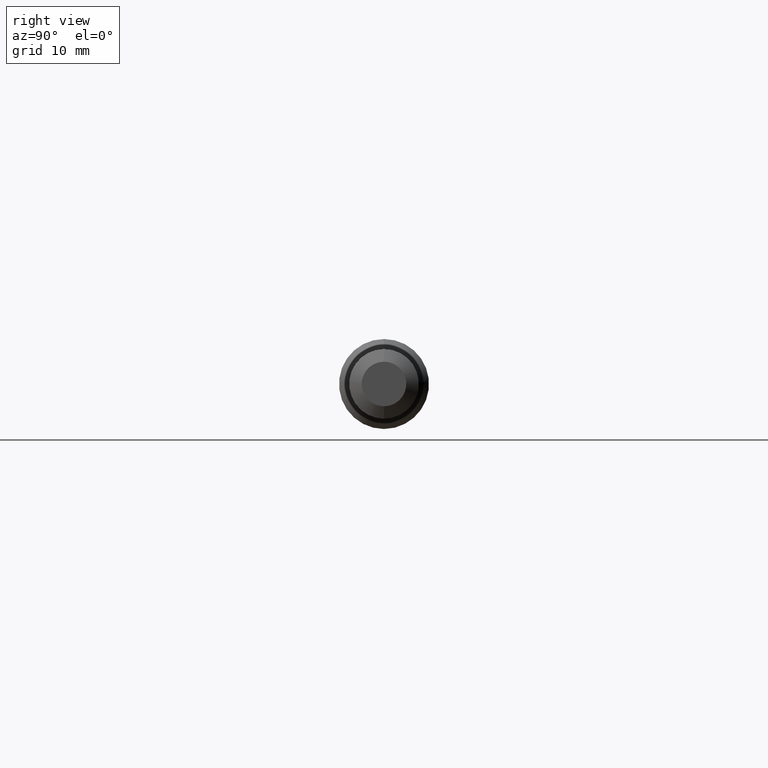
[diagram: clean part render]
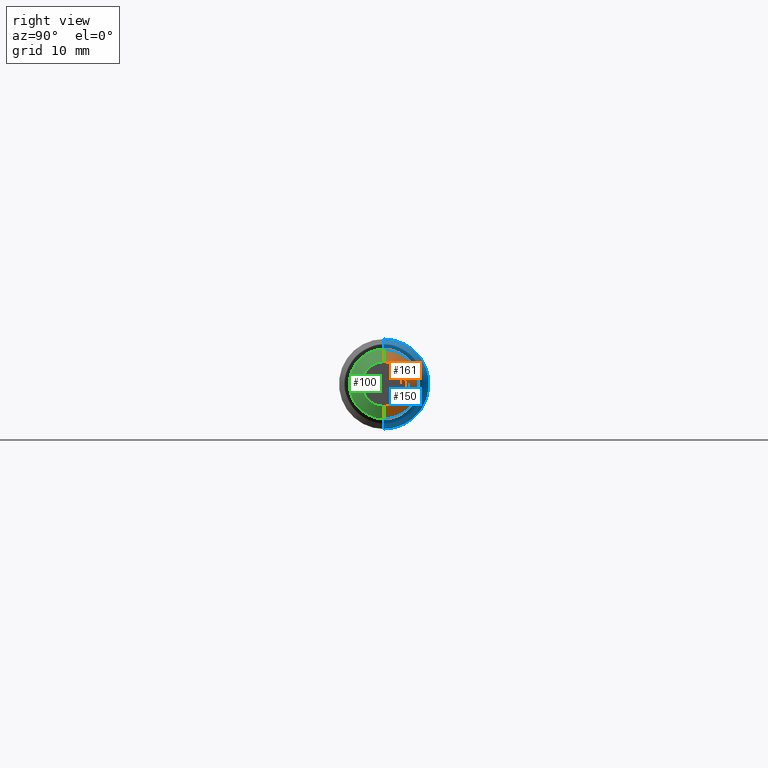
[diagram: same view with three faces highlighted in distinct colors, each labeled with its STEP entity id]
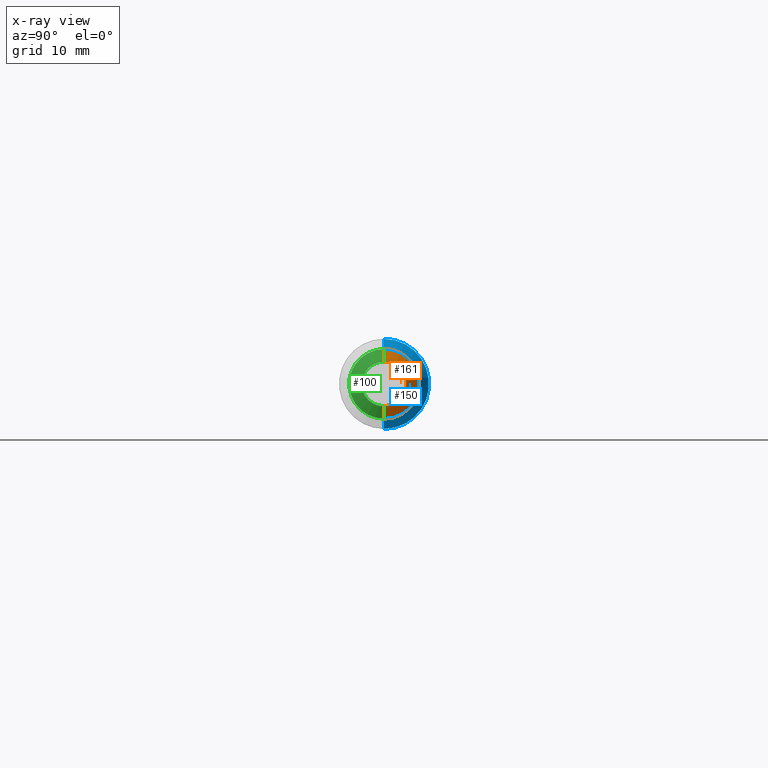
[diagram: x-ray of the same camera — body ghosted, the three highlighted faces saturated]
A machine part, right view with three faces highlighted in distinct colors.
The next image is the same camera in x-ray (body ghosted, the three faces saturated) — at least one of them is partly hidden behind the body in this view.
Their STEP definitions:

[orange] entity #161 — the highlighted conical surface has half-angle 60.15 deg.
#8 = EDGE_LOOP ( 'NONE', ( #478, #10, #93, #338 ) ) ;
#10 = ORIENTED_EDGE ( 'NONE', *, *, #246, .T. ) ;
#17 = AXIS2_PLACEMENT_3D ( 'NONE', #186, #305, #142 ) ;
#25 = CARTESIAN_POINT ( 'NONE',  ( 3.000000000000000444, 1.138921523207031801E-17, -0.09299999999999945810 ) ) ;
#40 = VERTEX_POINT ( 'NONE', #170 ) ;
#47 = VERTEX_POINT ( 'NONE', #353 ) ;
#49 = CARTESIAN_POINT ( 'NONE',  ( 3.000000000000000444, 0.0000000000000000000, 0.0000000000000000000 ) ) ;
#50 = VERTEX_POINT ( 'NONE', #294 ) ;
#63 = CIRCLE ( 'NONE', #91, 0.09299999999999945810 ) ;
#91 = AXIS2_PLACEMENT_3D ( 'NONE', #49, #442, #476 ) ;
#93 = ORIENTED_EDGE ( 'NONE', *, *, #322, .F. ) ;
#104 = DIRECTION ( 'NONE',  ( -0.4977310399126119722, 1.062174661273176374E-16, -0.8673314314075730724 ) ) ;
#137 = DIRECTION ( 'NONE',  ( -1.000000000000000000, -0.0000000000000000000, -0.0000000000000000000 ) ) ;
#142 = DIRECTION ( 'NONE',  ( 0.0000000000000000000, 0.0000000000000000000, 1.000000000000000000 ) ) ;
#145 = CARTESIAN_POINT ( 'NONE',  ( 3.000000000000000444, 0.0000000000000000000, 0.09299999999999945810 ) ) ;
#161 = ADVANCED_FACE ( 'NONE', ( #191 ), #206, .T. ) ;
#170 = CARTESIAN_POINT ( 'NONE',  ( 2.970159026713176775, 0.0000000000000000000, 0.1449999999999994349 ) ) ;
#186 = CARTESIAN_POINT ( 'NONE',  ( 3.000000000000000444, 0.0000000000000000000, 0.0000000000000000000 ) ) ;
#190 = DIRECTION ( 'NONE',  ( -0.4977310399126119722, 0.0000000000000000000, 0.8673314314075730724 ) ) ;
#191 = FACE_OUTER_BOUND ( 'NONE', #8, .T. ) ;
#206 = CONICAL_SURFACE ( 'NONE', #17, 0.09299999999999945810, 1.049815545074589407 ) ;
#219 = EDGE_CURVE ( 'NONE', #47, #501, #63, .T. ) ;
#246 = EDGE_CURVE ( 'NONE', #501, #50, #418, .T. ) ;
#249 = DIRECTION ( 'NONE',  ( 0.0000000000000000000, 0.0000000000000000000, 1.000000000000000000 ) ) ;
#294 = CARTESIAN_POINT ( 'NONE',  ( 2.970159026713176775, 1.775737858763655137E-17, -0.1449999999999994349 ) ) ;
#305 = DIRECTION ( 'NONE',  ( -1.000000000000000000, -0.0000000000000000000, -0.0000000000000000000 ) ) ;
#310 = CARTESIAN_POINT ( 'NONE',  ( 2.970159026713176775, 0.0000000000000000000, 0.0000000000000000000 ) ) ;
#321 = VECTOR ( 'NONE', #190, 39.37007874015748854 ) ;
#322 = EDGE_CURVE ( 'NONE', #40, #50, #446, .T. ) ;
#338 = ORIENTED_EDGE ( 'NONE', *, *, #436, .F. ) ;
#353 = CARTESIAN_POINT ( 'NONE',  ( 3.000000000000000444, 0.0000000000000000000, 0.09299999999999945810 ) ) ;
#369 = CARTESIAN_POINT ( 'NONE',  ( 3.000000000000000444, 1.457329690985343700E-17, -0.09299999999999945810 ) ) ;
#418 = LINE ( 'NONE', #25, #458 ) ;
#436 = EDGE_CURVE ( 'NONE', #47, #40, #479, .T. ) ;
#442 = DIRECTION ( 'NONE',  ( -1.000000000000000000, -0.0000000000000000000, -0.0000000000000000000 ) ) ;
#446 = CIRCLE ( 'NONE', #450, 0.1449999999999994349 ) ;
#450 = AXIS2_PLACEMENT_3D ( 'NONE', #310, #137, #249 ) ;
#458 = VECTOR ( 'NONE', #104, 39.37007874015748854 ) ;
#476 = DIRECTION ( 'NONE',  ( 0.0000000000000000000, 0.0000000000000000000, 1.000000000000000000 ) ) ;
#478 = ORIENTED_EDGE ( 'NONE', *, *, #219, .T. ) ;
#479 = LINE ( 'NONE', #145, #321 ) ;
#501 = VERTEX_POINT ( 'NONE', #369 ) ;

[blue] entity #150 — the highlighted conical surface has half-angle 45 deg.
#6 = CIRCLE ( 'NONE', #171, 0.1873499999999999888 ) ;
#12 = DIRECTION ( 'NONE',  ( 0.0000000000000000000, 0.0000000000000000000, 1.000000000000000000 ) ) ;
#41 = CARTESIAN_POINT ( 'NONE',  ( 1.936586696242840633, 0.0000000000000000000, 0.0000000000000000000 ) ) ;
#54 = VECTOR ( 'NONE', #377, 39.37007874015748143 ) ;
#57 = CARTESIAN_POINT ( 'NONE',  ( 1.852559026713177293, 0.0000000000000000000, 0.0000000000000000000 ) ) ;
#68 = VERTEX_POINT ( 'NONE', #348 ) ;
#78 = CARTESIAN_POINT ( 'NONE',  ( 1.936586696242840633, 0.0000000000000000000, 0.1033223304703363571 ) ) ;
#89 = CARTESIAN_POINT ( 'NONE',  ( 1.936586696242840633, 0.0000000000000000000, 0.1033223304703363571 ) ) ;
#90 = FACE_OUTER_BOUND ( 'NONE', #422, .T. ) ;
#103 = VERTEX_POINT ( 'NONE', #437 ) ;
#115 = ORIENTED_EDGE ( 'NONE', *, *, #120, .F. ) ;
#120 = EDGE_CURVE ( 'NONE', #390, #103, #277, .T. ) ;
#138 = CARTESIAN_POINT ( 'NONE',  ( 1.936586696242840633, 1.265333612909424414E-17, -0.1033223304703363571 ) ) ;
#150 = ADVANCED_FACE ( 'NONE', ( #90 ), #247, .T. ) ;
#159 = EDGE_CURVE ( 'NONE', #270, #68, #419, .T. ) ;
#171 = AXIS2_PLACEMENT_3D ( 'NONE', #57, #234, #414 ) ;
#180 = DIRECTION ( 'NONE',  ( -1.000000000000000000, -0.0000000000000000000, -0.0000000000000000000 ) ) ;
#188 = DIRECTION ( 'NONE',  ( -0.7071067811865454633, 0.0000000000000000000, 0.7071067811865495711 ) ) ;
#189 = EDGE_CURVE ( 'NONE', #103, #68, #6, .T. ) ;
#194 = ORIENTED_EDGE ( 'NONE', *, *, #196, .T. ) ;
#196 = EDGE_CURVE ( 'NONE', #390, #270, #214, .T. ) ;
#210 = AXIS2_PLACEMENT_3D ( 'NONE', #371, #180, #12 ) ;
#214 = CIRCLE ( 'NONE', #210, 0.1033223304703363571 ) ;
#221 = ORIENTED_EDGE ( 'NONE', *, *, #189, .F. ) ;
#234 = DIRECTION ( 'NONE',  ( -1.000000000000000000, -0.0000000000000000000, -0.0000000000000000000 ) ) ;
#247 = CONICAL_SURFACE ( 'NONE', #352, 0.1033223304703363571, 0.7853981633974511656 ) ;
#270 = VERTEX_POINT ( 'NONE', #138 ) ;
#277 = LINE ( 'NONE', #89, #311 ) ;
#285 = DIRECTION ( 'NONE',  ( -1.000000000000000000, -0.0000000000000000000, -0.0000000000000000000 ) ) ;
#311 = VECTOR ( 'NONE', #188, 39.37007874015748143 ) ;
#348 = CARTESIAN_POINT ( 'NONE',  ( 1.852559026713177293, 2.294375778202565714E-17, -0.1873499999999999888 ) ) ;
#352 = AXIS2_PLACEMENT_3D ( 'NONE', #41, #285, #445 ) ;
#371 = CARTESIAN_POINT ( 'NONE',  ( 1.936586696242840633, 0.0000000000000000000, 0.0000000000000000000 ) ) ;
#377 = DIRECTION ( 'NONE',  ( -0.7071067811865454633, 8.659560562354957510E-17, -0.7071067811865495711 ) ) ;
#390 = VERTEX_POINT ( 'NONE', #78 ) ;
#400 = CARTESIAN_POINT ( 'NONE',  ( 1.936586696242840633, 1.265333612909424568E-17, -0.1033223304703363571 ) ) ;
#414 = DIRECTION ( 'NONE',  ( 0.0000000000000000000, 0.0000000000000000000, 1.000000000000000000 ) ) ;
#419 = LINE ( 'NONE', #400, #54 ) ;
#422 = EDGE_LOOP ( 'NONE', ( #194, #453, #221, #115 ) ) ;
#437 = CARTESIAN_POINT ( 'NONE',  ( 1.852559026713177293, 0.0000000000000000000, 0.1873499999999999888 ) ) ;
#445 = DIRECTION ( 'NONE',  ( 0.0000000000000000000, 0.0000000000000000000, 1.000000000000000000 ) ) ;
#453 = ORIENTED_EDGE ( 'NONE', *, *, #159, .T. ) ;

[green] entity #100 — the highlighted conical surface has half-angle 60.15 deg.
#20 = CIRCLE ( 'NONE', #155, 0.1449999999999994349 ) ;
#25 = CARTESIAN_POINT ( 'NONE',  ( 3.000000000000000444, 1.138921523207031801E-17, -0.09299999999999945810 ) ) ;
#40 = VERTEX_POINT ( 'NONE', #170 ) ;
#45 = CONICAL_SURFACE ( 'NONE', #51, 0.09299999999999945810, 1.049815545074589407 ) ;
#47 = VERTEX_POINT ( 'NONE', #353 ) ;
#50 = VERTEX_POINT ( 'NONE', #294 ) ;
#51 = AXIS2_PLACEMENT_3D ( 'NONE', #149, #337, #403 ) ;
#100 = ADVANCED_FACE ( 'NONE', ( #167 ), #45, .T. ) ;
#104 = DIRECTION ( 'NONE',  ( -0.4977310399126119722, 1.062174661273176374E-16, -0.8673314314075730724 ) ) ;
#139 = DIRECTION ( 'NONE',  ( 0.0000000000000000000, 0.0000000000000000000, 1.000000000000000000 ) ) ;
#145 = CARTESIAN_POINT ( 'NONE',  ( 3.000000000000000444, 0.0000000000000000000, 0.09299999999999945810 ) ) ;
#149 = CARTESIAN_POINT ( 'NONE',  ( 3.000000000000000444, 0.0000000000000000000, 0.0000000000000000000 ) ) ;
#155 = AXIS2_PLACEMENT_3D ( 'NONE', #308, #297, #139 ) ;
#167 = FACE_OUTER_BOUND ( 'NONE', #425, .T. ) ;
#170 = CARTESIAN_POINT ( 'NONE',  ( 2.970159026713176775, 0.0000000000000000000, 0.1449999999999994349 ) ) ;
#184 = AXIS2_PLACEMENT_3D ( 'NONE', #224, #230, #283 ) ;
#190 = DIRECTION ( 'NONE',  ( -0.4977310399126119722, 0.0000000000000000000, 0.8673314314075730724 ) ) ;
#224 = CARTESIAN_POINT ( 'NONE',  ( 3.000000000000000444, 0.0000000000000000000, 0.0000000000000000000 ) ) ;
#230 = DIRECTION ( 'NONE',  ( -1.000000000000000000, -0.0000000000000000000, -0.0000000000000000000 ) ) ;
#246 = EDGE_CURVE ( 'NONE', #501, #50, #418, .T. ) ;
#283 = DIRECTION ( 'NONE',  ( 0.0000000000000000000, 0.0000000000000000000, 1.000000000000000000 ) ) ;
#294 = CARTESIAN_POINT ( 'NONE',  ( 2.970159026713176775, 1.775737858763655137E-17, -0.1449999999999994349 ) ) ;
#297 = DIRECTION ( 'NONE',  ( -1.000000000000000000, -0.0000000000000000000, -0.0000000000000000000 ) ) ;
#308 = CARTESIAN_POINT ( 'NONE',  ( 2.970159026713176775, 0.0000000000000000000, 0.0000000000000000000 ) ) ;
#321 = VECTOR ( 'NONE', #190, 39.37007874015748854 ) ;
#330 = CIRCLE ( 'NONE', #184, 0.09299999999999945810 ) ;
#337 = DIRECTION ( 'NONE',  ( -1.000000000000000000, -0.0000000000000000000, -0.0000000000000000000 ) ) ;
#353 = CARTESIAN_POINT ( 'NONE',  ( 3.000000000000000444, 0.0000000000000000000, 0.09299999999999945810 ) ) ;
#369 = CARTESIAN_POINT ( 'NONE',  ( 3.000000000000000444, 1.457329690985343700E-17, -0.09299999999999945810 ) ) ;
#387 = EDGE_CURVE ( 'NONE', #50, #40, #20, .T. ) ;
#403 = DIRECTION ( 'NONE',  ( 0.0000000000000000000, 0.0000000000000000000, 1.000000000000000000 ) ) ;
#418 = LINE ( 'NONE', #25, #458 ) ;
#424 = ORIENTED_EDGE ( 'NONE', *, *, #457, .T. ) ;
#425 = EDGE_LOOP ( 'NONE', ( #459, #424, #472, #431 ) ) ;
#431 = ORIENTED_EDGE ( 'NONE', *, *, #387, .F. ) ;
#436 = EDGE_CURVE ( 'NONE', #47, #40, #479, .T. ) ;
#457 = EDGE_CURVE ( 'NONE', #501, #47, #330, .T. ) ;
#458 = VECTOR ( 'NONE', #104, 39.37007874015748854 ) ;
#459 = ORIENTED_EDGE ( 'NONE', *, *, #246, .F. ) ;
#472 = ORIENTED_EDGE ( 'NONE', *, *, #436, .T. ) ;
#479 = LINE ( 'NONE', #145, #321 ) ;
#501 = VERTEX_POINT ( 'NONE', #369 ) ;